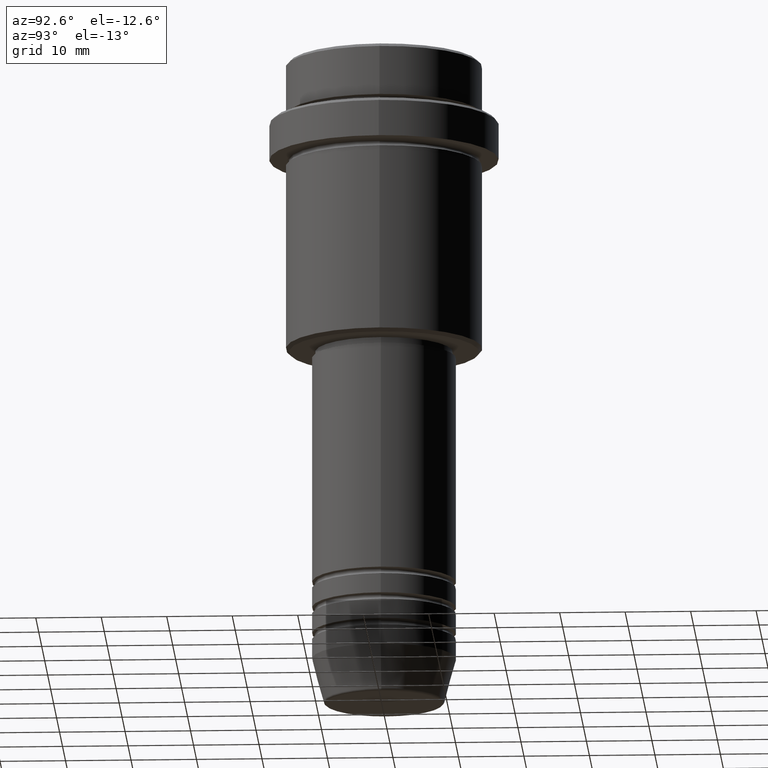
[diagram: clean part render]
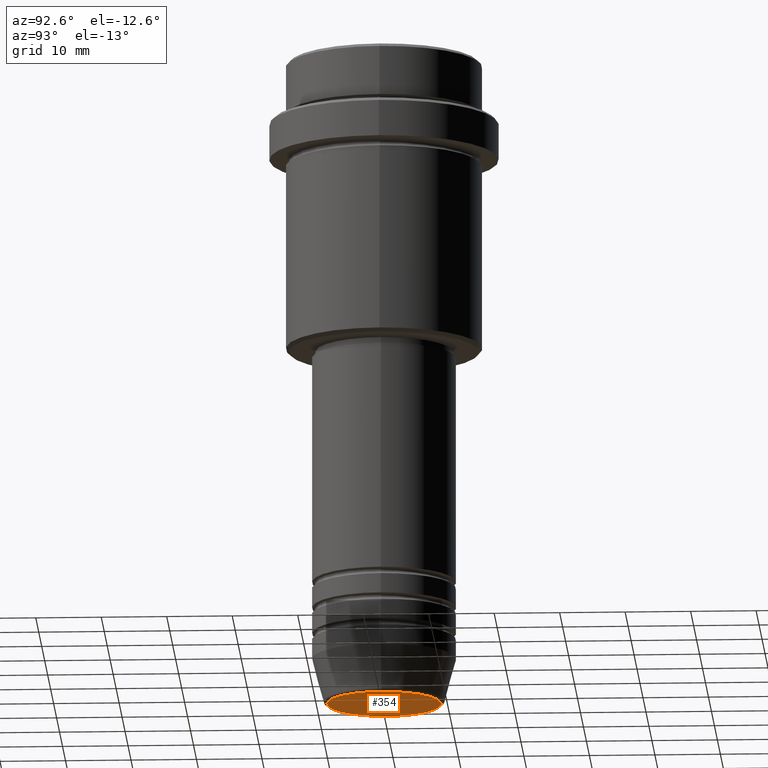
[diagram: same view with one face highlighted and labeled with its STEP entity id]
A machine part, auxiliary view. The second image highlights one B-rep face of the part: STEP entity #354.
In plain terms, the highlighted planar face has unit normal (0, -0, 1).
Its self-contained STEP definition (entity closure, byte-faithful):
#9 = CARTESIAN_POINT ( 'NONE',  ( 0.000000000000000000, 0.000000000000000000, -100.0000000000000000 ) ) ;
#25 = CIRCLE ( 'NONE', #172, 8.740692158992652949 ) ;
#40 = DIRECTION ( 'NONE',  ( 0.000000000000000000, -0.000000000000000000, 1.000000000000000000 ) ) ;
#172 = AXIS2_PLACEMENT_3D ( 'NONE', #483, #258, #804 ) ;
#219 = AXIS2_PLACEMENT_3D ( 'NONE', #9, #768, #1295 ) ;
#258 = DIRECTION ( 'NONE',  ( 0.000000000000000000, 0.000000000000000000, -1.000000000000000000 ) ) ;
#354 = ADVANCED_FACE ( 'NONE', ( #1362 ), #701, .F. ) ;
#461 = CARTESIAN_POINT ( 'NONE',  ( -8.740692158992652949, 1.099999016768739259E-15, -100.0000000000000000 ) ) ;
#482 = DIRECTION ( 'NONE',  ( 1.000000000000000000, 0.000000000000000000, 0.000000000000000000 ) ) ;
#483 = CARTESIAN_POINT ( 'NONE',  ( 0.000000000000000000, 0.000000000000000000, -100.0000000000000000 ) ) ;
#510 = VERTEX_POINT ( 'NONE', #672 ) ;
#571 = CARTESIAN_POINT ( 'NONE',  ( 0.000000000000000000, 0.000000000000000000, -100.0000000000000000 ) ) ;
#672 = CARTESIAN_POINT ( 'NONE',  ( 8.740692158992652949, 0.000000000000000000, -100.0000000000000000 ) ) ;
#701 = PLANE ( 'NONE',  #911 ) ;
#768 = DIRECTION ( 'NONE',  ( 0.000000000000000000, 0.000000000000000000, -1.000000000000000000 ) ) ;
#792 = ORIENTED_EDGE ( 'NONE', *, *, #1114, .T. ) ;
#804 = DIRECTION ( 'NONE',  ( 1.000000000000000000, 0.000000000000000000, 0.000000000000000000 ) ) ;
#851 = CIRCLE ( 'NONE', #219, 8.740692158992652949 ) ;
#911 = AXIS2_PLACEMENT_3D ( 'NONE', #571, #40, #482 ) ;
#925 = VERTEX_POINT ( 'NONE', #461 ) ;
#1114 = EDGE_CURVE ( 'NONE', #510, #925, #851, .T. ) ;
#1213 = EDGE_LOOP ( 'NONE', ( #792, #1393 ) ) ;
#1295 = DIRECTION ( 'NONE',  ( 1.000000000000000000, 0.000000000000000000, 0.000000000000000000 ) ) ;
#1362 = FACE_OUTER_BOUND ( 'NONE', #1213, .T. ) ;
#1372 = EDGE_CURVE ( 'NONE', #925, #510, #25, .T. ) ;
#1393 = ORIENTED_EDGE ( 'NONE', *, *, #1372, .T. ) ;